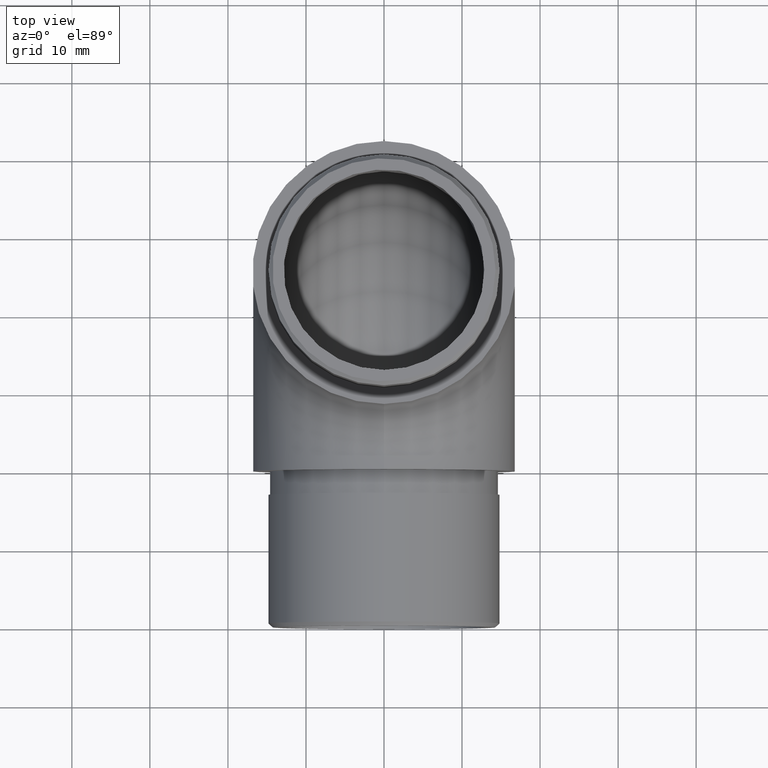
[diagram: clean part render]
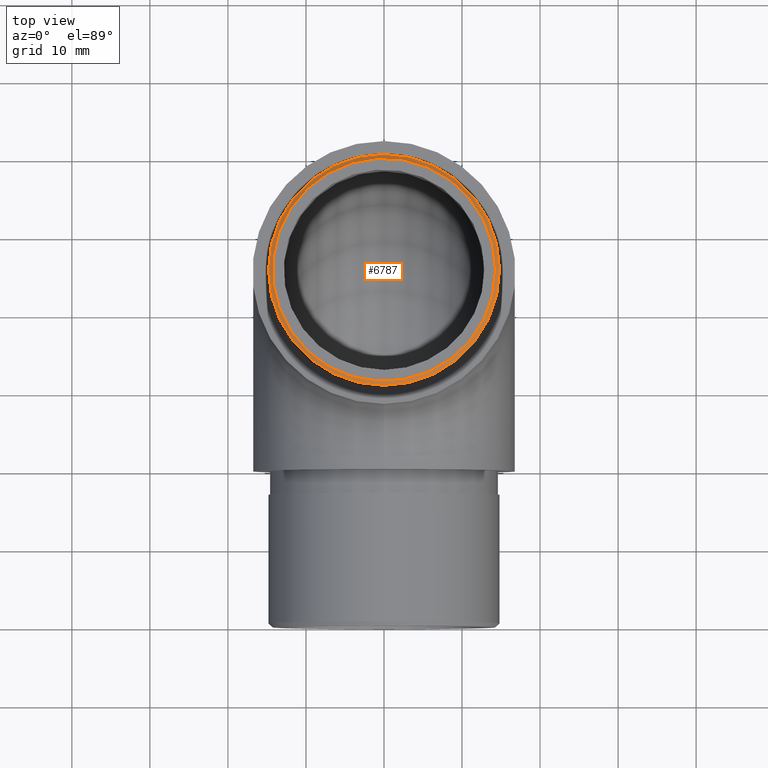
[diagram: same view with one face highlighted and labeled with its STEP entity id]
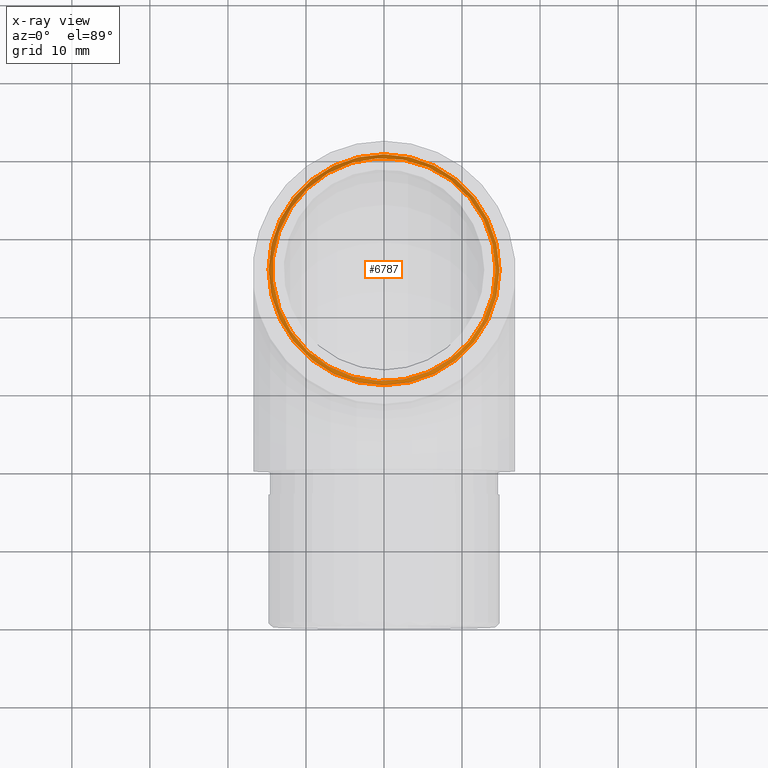
[diagram: x-ray of the same camera — body ghosted, the highlighted face saturated]
A machine part, top view. The second image highlights one B-rep face of the part: STEP entity #6787.
The next image is the same camera in x-ray: the body ghosted, the highlighted face saturated — about 0% of this face is hidden behind the body in this view.
In plain terms, the highlighted conical surface has half-angle 45 deg.
Its self-contained STEP definition (entity closure, byte-faithful):
#127 = CARTESIAN_POINT ( 'NONE',  ( 14.30000000000000800, 25.04999999999999400, 61.90000000000000600 ) ) ;
#1082 = VERTEX_POINT ( 'NONE', #11485 ) ;
#1674 = DIRECTION ( 'NONE',  ( 0.0000000000000000000, 0.0000000000000000000, -1.000000000000000000 ) ) ;
#1790 = EDGE_CURVE ( 'NONE', #10261, #10261, #2677, .T. ) ;
#2423 = FACE_BOUND ( 'NONE', #8849, .T. ) ;
#2677 = CIRCLE ( 'NONE', #14915, 14.30000000000000800 ) ;
#4886 = CIRCLE ( 'NONE', #6151, 14.80000000000000100 ) ;
#5813 = CARTESIAN_POINT ( 'NONE',  ( 0.0000000000000000000, 25.04999999999999400, 61.90000000000000600 ) ) ;
#6127 = CARTESIAN_POINT ( 'NONE',  ( 0.0000000000000000000, 25.04999999999999400, 61.90000000000000600 ) ) ;
#6151 = AXIS2_PLACEMENT_3D ( 'NONE', #8338, #1674, #13148 ) ;
#6358 = AXIS2_PLACEMENT_3D ( 'NONE', #6127, #14265, #14559 ) ;
#6787 = ADVANCED_FACE ( 'NONE', ( #8685, #2423 ), #13044, .T. ) ;
#8338 = CARTESIAN_POINT ( 'NONE',  ( 0.0000000000000000000, 25.04999999999999400, 61.40000000000002700 ) ) ;
#8429 = ORIENTED_EDGE ( 'NONE', *, *, #13755, .F. ) ;
#8685 = FACE_OUTER_BOUND ( 'NONE', #11477, .T. ) ;
#8849 = EDGE_LOOP ( 'NONE', ( #10910 ) ) ;
#9178 = DIRECTION ( 'NONE',  ( 0.0000000000000000000, 0.0000000000000000000, 1.000000000000000000 ) ) ;
#10261 = VERTEX_POINT ( 'NONE', #127 ) ;
#10910 = ORIENTED_EDGE ( 'NONE', *, *, #1790, .F. ) ;
#11477 = EDGE_LOOP ( 'NONE', ( #8429 ) ) ;
#11485 = CARTESIAN_POINT ( 'NONE',  ( 14.80000000000000100, 25.04999999999999400, 61.40000000000002700 ) ) ;
#13044 = CONICAL_SURFACE ( 'NONE', #6358, 14.30000000000000800, 0.7853981633974621600 ) ;
#13148 = DIRECTION ( 'NONE',  ( 1.000000000000000000, 0.0000000000000000000, 0.0000000000000000000 ) ) ;
#13755 = EDGE_CURVE ( 'NONE', #1082, #1082, #4886, .T. ) ;
#13842 = DIRECTION ( 'NONE',  ( 1.000000000000000000, 0.0000000000000000000, 0.0000000000000000000 ) ) ;
#14265 = DIRECTION ( 'NONE',  ( 0.0000000000000000000, 0.0000000000000000000, -1.000000000000000000 ) ) ;
#14559 = DIRECTION ( 'NONE',  ( -1.000000000000000000, 0.0000000000000000000, 0.0000000000000000000 ) ) ;
#14915 = AXIS2_PLACEMENT_3D ( 'NONE', #5813, #9178, #13842 ) ;